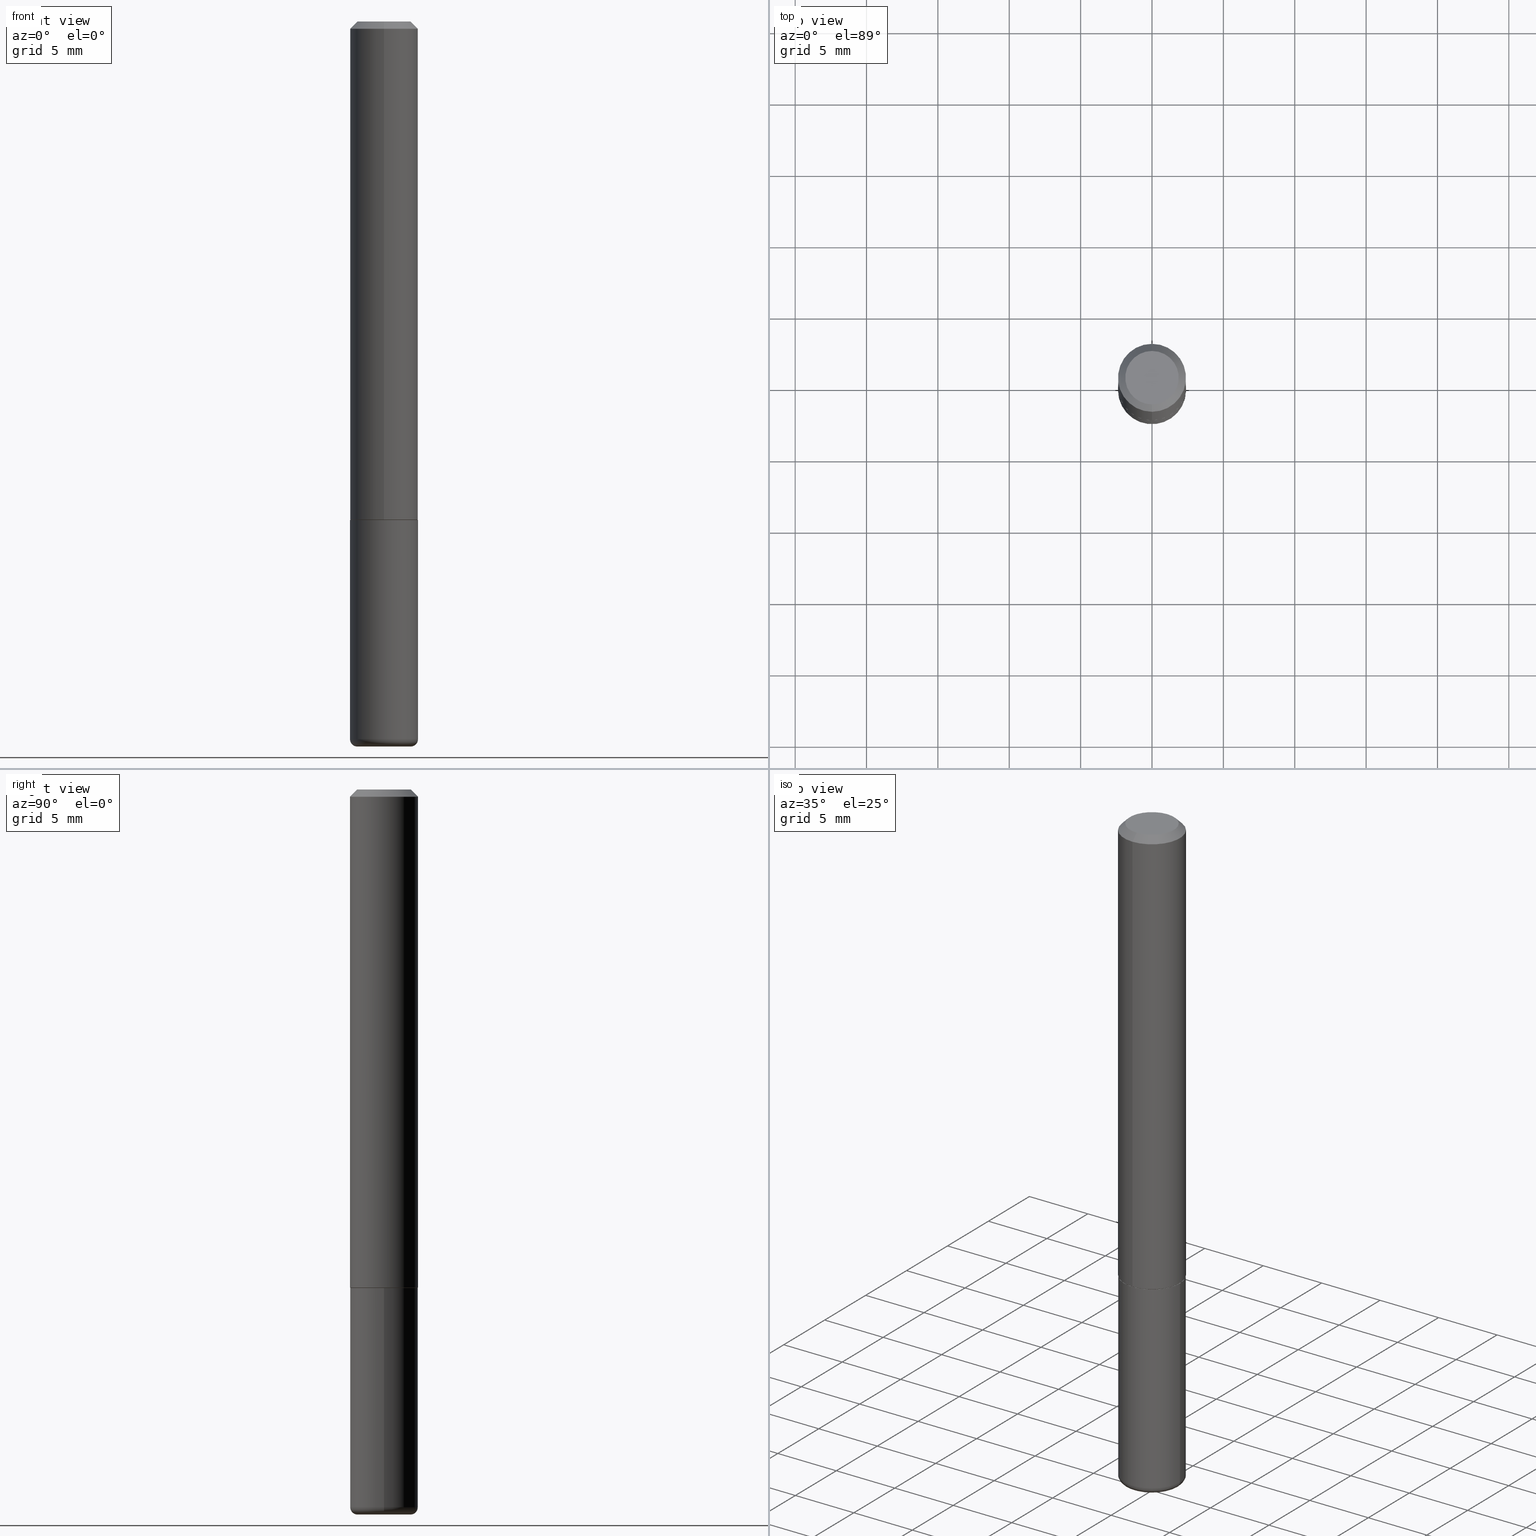
[diagram: canonical four-view strip — front | top / right | iso, engineering-drawing reading convention]
A machine part, canonical four-view strip (front | top / right | iso — engineering-drawing reading convention). The complete STEP part file that produces these views, byte-faithful:
ISO-10303-21;
HEADER;
FILE_DESCRIPTION (( 'STEP AP203' ),
    '1' );
FILE_NAME ('38211.STEP',
    '2024-03-02T18:24:56',
    ( '' ),
    ( '' ),
    'SwSTEP 2.0',
    'SolidWorks 2023',
    '' );
FILE_SCHEMA (( 'CONFIG_CONTROL_DESIGN' ));
ENDSEC;

DATA;
#1 = CC_DESIGN_APPROVAL ( #50, ( #32 ) ) ;
#2 = PERSON_AND_ORGANIZATION ( #252, #129 ) ;
#3 = DATE_AND_TIME ( #166, #407 ) ;
#4 = DIRECTION ( 'NONE',  ( -6.982962677686265922E-15, -1.000000000000000000, 2.945388672414299892E-15 ) ) ;
#5 = ADVANCED_FACE ( 'NONE', ( #393 ), #267, .T. ) ;
#6 = COORDINATED_UNIVERSAL_TIME_OFFSET ( 5, 0, .BEHIND. ) ;
#7 = TOROIDAL_SURFACE ( 'NONE', #56, 0.07375000000000000999, 0.01999999999999990327 ) ;
#8 = CIRCLE ( 'NONE', #51, 0.09375000000000002776 ) ;
#9 = ORIENTED_EDGE ( 'NONE', *, *, #237, .F. ) ;
#10 = EDGE_CURVE ( 'NONE', #324, #135, #134, .T. ) ;
#11 = MECHANICAL_CONTEXT ( 'NONE', #33, 'mechanical' ) ;
#12 = ORIENTED_EDGE ( 'NONE', *, *, #15, .F. ) ;
#13 = AXIS2_PLACEMENT_3D ( 'NONE', #126, #130, #385 ) ;
#14 = DIRECTION ( 'NONE',  ( -2.445468806185136597E-29, 3.491481338843145583E-15, 1.000000000000000000 ) ) ;
#15 = EDGE_CURVE ( 'NONE', #75, #53, #38, .T. ) ;
#16 = FACE_OUTER_BOUND ( 'NONE', #22, .T. ) ;
#17 = APPROVAL_ROLE ( '' ) ;
#18 = CARTESIAN_POINT ( 'NONE',  ( -0.07375000000000000999, -6.352968323098775674E-15, -1.999999999999999778 ) ) ;
#19 = ADVANCED_FACE ( 'NONE', ( #254 ), #116, .F. ) ;
#20 = CARTESIAN_POINT ( 'NONE',  ( -6.546527510330881944E-16, -0.09375000000000011102, 3.272963696799707431E-16 ) ) ;
#21 = DIRECTION ( 'NONE',  ( 2.445692304464510391E-29, -3.491161276586350254E-15, -1.000000000000000000 ) ) ;
#22 = EDGE_LOOP ( 'NONE', ( #156, #263, #95, #300 ) ) ;
#23 = CLOSED_SHELL ( 'NONE', ( #368, #34, #278, #326, #104, #247 ) ) ;
#24 = DIRECTION ( 'NONE',  ( 2.438088387897960049E-29, -3.491481338843145188E-15, -1.000000000000000000 ) ) ;
#25 = CARTESIAN_POINT ( 'NONE',  ( -0.09375000000000001388, -5.190826131134282474E-15, -1.375000000000000000 ) ) ;
#26 = ADVANCED_FACE ( 'NONE', ( #336 ), #83, .T. ) ;
#27 = DIRECTION ( 'NONE',  ( -2.445692304464510391E-29, 3.491161276586350254E-15, 1.000000000000000000 ) ) ;
#28 = EDGE_LOOP ( 'NONE', ( #12, #59 ) ) ;
#29 = VECTOR ( 'NONE', #310, 39.37007874015748143 ) ;
#30 = AXIS2_PLACEMENT_3D ( 'NONE', #54, #312, #291 ) ;
#31 = ORIENTED_EDGE ( 'NONE', *, *, #209, .T. ) ;
#32 = SECURITY_CLASSIFICATION ( '', '', #363 ) ;
#33 = APPLICATION_CONTEXT ( 'configuration controlled 3d designs of mechanical parts and assemblies' ) ;
#34 = ADVANCED_FACE ( 'NONE', ( #16 ), #7, .T. ) ;
#35 = ORIENTED_EDGE ( 'NONE', *, *, #10, .T. ) ;
#36 = COORDINATED_UNIVERSAL_TIME_OFFSET ( 5, 0, .BEHIND. ) ;
#37 = EDGE_CURVE ( 'NONE', #210, #153, #338, .T. ) ;
#38 = CIRCLE ( 'NONE', #320, 0.07375000000000000999 ) ;
#39 = ORIENTED_EDGE ( 'NONE', *, *, #398, .T. ) ;
#40 = CIRCLE ( 'NONE', #321, 0.07375000000000013489 ) ;
#41 = ADVANCED_FACE ( 'NONE', ( #332 ), #146, .T. ) ;
#42 = DIRECTION ( 'NONE',  ( -2.445692304464510391E-29, 3.491161276586350254E-15, 1.000000000000000000 ) ) ;
#43 = AXIS2_PLACEMENT_3D ( 'NONE', #378, #223, #414 ) ;
#44 = PERSON_AND_ORGANIZATION ( #252, #129 ) ;
#45 = CC_DESIGN_DATE_AND_TIME_ASSIGNMENT ( #353, #82, ( #182 ) ) ;
#46 = CARTESIAN_POINT ( 'NONE',  ( 4.842028236246570103E-29, -6.913133050909427867E-15, -1.979999999999999982 ) ) ;
#47 = CARTESIAN_POINT ( 'NONE',  ( 0.07375000000000000999, -7.497956175165652073E-15, -1.999999999999999778 ) ) ;
#48 = APPLICATION_CONTEXT ( 'configuration controlled 3d designs of mechanical parts and assemblies' ) ;
#49 = DIRECTION ( 'NONE',  ( -6.982962677686266711E-15, -1.000000000000000000, 2.913971193241874850E-15 ) ) ;
#50 = APPROVAL ( #331, 'UNSPECIFIED' ) ;
#51 = AXIS2_PLACEMENT_3D ( 'NONE', #276, #244, #362 ) ;
#52 = DIRECTION ( 'NONE',  ( 1.000000000000000000, -6.982962677686272233E-15, 0.000000000000000000 ) ) ;
#53 = VERTEX_POINT ( 'NONE', #18 ) ;
#54 = CARTESIAN_POINT ( 'NONE',  ( 4.891384608929025126E-31, -6.982322553172705093E-17, -0.02000000000000001776 ) ) ;
#55 = EDGE_LOOP ( 'NONE', ( #132, #185 ) ) ;
#56 = AXIS2_PLACEMENT_3D ( 'NONE', #46, #220, #277 ) ;
#57 = AXIS2_PLACEMENT_3D ( 'NONE', #305, #330, #304 ) ;
#58 = CARTESIAN_POINT ( 'NONE',  ( 3.362519608504562260E-29, -4.800786840909324930E-15, -1.375000000000000000 ) ) ;
#59 = ORIENTED_EDGE ( 'NONE', *, *, #78, .F. ) ;
#60 = CARTESIAN_POINT ( 'NONE',  ( 4.891384608929025126E-31, -6.982322553172705093E-17, -0.02000000000000001776 ) ) ;
#61 = EDGE_LOOP ( 'NONE', ( #292, #110, #314, #65 ) ) ;
#62 = CARTESIAN_POINT ( 'NONE',  ( 0.07375000000000000999, -7.428126548388790352E-15, -1.979999999999999982 ) ) ;
#63 = ORIENTED_EDGE ( 'NONE', *, *, #158, .T. ) ;
#64 = CIRCLE ( 'NONE', #195, 0.09375000000000001388 ) ;
#65 = ORIENTED_EDGE ( 'NONE', *, *, #158, .F. ) ;
#66 = LINE ( 'NONE', #271, #117 ) ;
#67 = CARTESIAN_POINT ( 'NONE',  ( 3.362826918638701367E-29, -4.800346755306231649E-15, -1.375000000000000000 ) ) ;
#68 = DIRECTION ( 'NONE',  ( -2.445692304464510391E-29, 3.491161276586350254E-15, 1.000000000000000000 ) ) ;
#69 = ORIENTED_EDGE ( 'NONE', *, *, #164, .T. ) ;
#70 =( NAMED_UNIT ( * ) PLANE_ANGLE_UNIT ( ) SI_UNIT ( $, .RADIAN. ) );
#71 = ORIENTED_EDGE ( 'NONE', *, *, #379, .T. ) ;
#72 = CIRCLE ( 'NONE', #283, 0.01999999999999989633 ) ;
#73 = MANIFOLD_SOLID_BREP ( 'Body-Move/Copy2[2]', #172 ) ;
#74 =( LENGTH_UNIT ( ) NAMED_UNIT ( * ) SI_UNIT ( $, .METRE. ) );
#75 = VERTEX_POINT ( 'NONE', #47 ) ;
#76 = PERSON_AND_ORGANIZATION ( #252, #129 ) ;
#77 = CARTESIAN_POINT ( 'NONE',  ( 4.890937612370272633E-29, -6.982962677686290376E-15, -1.999999999999999778 ) ) ;
#78 = EDGE_CURVE ( 'NONE', #53, #75, #383, .T. ) ;
#79 = COORDINATED_UNIVERSAL_TIME_OFFSET ( 5, 0, .BEHIND. ) ;
#80 = FACE_OUTER_BOUND ( 'NONE', #238, .T. ) ;
#81 = AXIS2_PLACEMENT_3D ( 'NONE', #279, #371, #49 ) ;
#82 = DATE_TIME_ROLE ( 'creation_date' ) ;
#83 = CYLINDRICAL_SURFACE ( 'NONE', #249, 0.09375000000000011102 ) ;
#84 = CARTESIAN_POINT ( 'NONE',  ( 3.362826918638701367E-29, -4.800346755306231649E-15, -1.375000000000000000 ) ) ;
#85 = ADVANCED_FACE ( 'NONE', ( #80 ), #409, .T. ) ;
#86 = CARTESIAN_POINT ( 'NONE',  ( 6.661338147750946145E-16, 0.09375000000000011102, -3.272963696799707431E-16 ) ) ;
#87 = AXIS2_PLACEMENT_3D ( 'NONE', #67, #165, #4 ) ;
#88 = CIRCLE ( 'NONE', #154, 0.07375000000000013489 ) ;
#89 = PLANE ( 'NONE',  #180 ) ;
#90 = PRODUCT_DEFINITION_SHAPE ( 'NONE', 'NONE',  #182 ) ;
#91 = VERTEX_POINT ( 'NONE', #178 ) ;
#92 = LINE ( 'NONE', #127, #274 ) ;
#93 = CC_DESIGN_PERSON_AND_ORGANIZATION_ASSIGNMENT ( #163, #295, ( #410 ) ) ;
#94 = DIRECTION ( 'NONE',  ( -2.445468806185136877E-29, 3.491481338843145188E-15, 1.000000000000000000 ) ) ;
#95 = ORIENTED_EDGE ( 'NONE', *, *, #412, .F. ) ;
#96 = CIRCLE ( 'NONE', #390, 0.09375000000000002776 ) ;
#97 = CARTESIAN_POINT ( 'NONE',  ( -6.476697883553675688E-16, -0.09275000000000480083, -1.374999999999999778 ) ) ;
#98 = DIRECTION ( 'NONE',  ( -1.000000000000000000, 6.982962677686265922E-15, -4.876176775795935793E-29 ) ) ;
#99 = CARTESIAN_POINT ( 'NONE',  ( 1.879681562415174393E-45, -2.683195866887273789E-31, -7.685682941324603213E-17 ) ) ;
#100 = ORIENTED_EDGE ( 'NONE', *, *, #122, .T. ) ;
#101 = DIRECTION ( 'NONE',  ( 1.000000000000000000, -6.982962677686265922E-15, 4.876176775795935793E-29 ) ) ;
#102 = AXIS2_PLACEMENT_3D ( 'NONE', #380, #191, #317 ) ;
#103 = VERTEX_POINT ( 'NONE', #369 ) ;
#104 = ADVANCED_FACE ( 'NONE', ( #149 ), #315, .T. ) ;
#105 = CARTESIAN_POINT ( 'NONE',  ( 0.000000000000000000, 0.000000000000000000, 0.000000000000000000 ) ) ;
#106 = DIRECTION ( 'NONE',  ( 1.000000000000000000, -6.982962677686270655E-15, 0.000000000000000000 ) ) ;
#107 = EDGE_CURVE ( 'NONE', #340, #296, #120, .T. ) ;
#108 = EDGE_LOOP ( 'NONE', ( #298, #69, #169, #358 ) ) ;
#109 = CYLINDRICAL_SURFACE ( 'NONE', #227, 0.09375000000000002776 ) ;
#110 = ORIENTED_EDGE ( 'NONE', *, *, #334, .T. ) ;
#111 = CIRCLE ( 'NONE', #417, 0.09274999999999999911 ) ;
#112 = DIRECTION ( 'NONE',  ( -2.445692304464510391E-29, 3.491161276586350254E-15, 1.000000000000000000 ) ) ;
#113 = COORDINATED_UNIVERSAL_TIME_OFFSET ( 5, 0, .BEHIND. ) ;
#114 = DIRECTION ( 'NONE',  ( -6.982962677686265922E-15, -1.000000000000000000, 3.491161276586350648E-15 ) ) ;
#115 = APPROVAL_DATE_TIME ( #118, #50 ) ;
#116 = PLANE ( 'NONE',  #365 ) ;
#117 = VECTOR ( 'NONE', #350, 39.37007874015748143 ) ;
#118 = DATE_AND_TIME ( #327, #196 ) ;
#119 = EDGE_CURVE ( 'NONE', #153, #103, #403, .T. ) ;
#120 = LINE ( 'NONE', #143, #186 ) ;
#121 = CARTESIAN_POINT ( 'NONE',  ( -5.745667073133659498E-16, -0.07375000000000013489, 1.806163147349977463E-16 ) ) ;
#122 = EDGE_CURVE ( 'NONE', #153, #324, #374, .T. ) ;
#123 = CONICAL_SURFACE ( 'NONE', #400, 0.09375000000000002776, 0.7853981633974471688 ) ;
#124 = CARTESIAN_POINT ( 'NONE',  ( 1.006419661735187879E-28, 4.254386610642577805E-16, -2.000000000000000000 ) ) ;
#125 = CC_DESIGN_PERSON_AND_ORGANIZATION_ASSIGNMENT ( #388, #199, ( #182 ) ) ;
#126 = CARTESIAN_POINT ( 'NONE',  ( 5.149934974793630771E-16, 0.07375000000000013489, -2.959015588548668315E-16 ) ) ;
#127 = CARTESIAN_POINT ( 'NONE',  ( 6.546527510330880958E-16, 0.09374999999999995837, -0.02000000000000034736 ) ) ;
#128 = AXIS2_PLACEMENT_3D ( 'NONE', #250, #307, #114 ) ;
#129 = ORGANIZATION ( 'UNSPECIFIED', 'UNSPECIFIED', '' ) ;
#130 = DIRECTION ( 'NONE',  ( 2.445692304464510111E-29, -3.491161276586350254E-15, -1.000000000000000000 ) ) ;
#131 = EDGE_CURVE ( 'NONE', #135, #103, #207, .T. ) ;
#132 = ORIENTED_EDGE ( 'NONE', *, *, #303, .F. ) ;
#133 =( CONVERSION_BASED_UNIT ( 'INCH', #392 ) LENGTH_UNIT ( ) NAMED_UNIT ( #239 ) );
#134 = LINE ( 'NONE', #86, #29 ) ;
#135 = VERTEX_POINT ( 'NONE', #246 ) ;
#136 = CARTESIAN_POINT ( 'NONE',  ( 6.590283874175264427E-16, 0.09274999999999521128, -1.375000000000000222 ) ) ;
#137 = ORIENTED_EDGE ( 'NONE', *, *, #258, .F. ) ;
#138 = CARTESIAN_POINT ( 'NONE',  ( 0.000000000000000000, 0.000000000000000000, 0.000000000000000000 ) ) ;
#139 = APPROVAL_ROLE ( '' ) ;
#140 = ORIENTED_EDGE ( 'NONE', *, *, #107, .F. ) ;
#141 = AXIS2_PLACEMENT_3D ( 'NONE', #413, #256, #348 ) ;
#142 = CARTESIAN_POINT ( 'NONE',  ( 0.000000000000000000, 0.000000000000000000, 0.000000000000000000 ) ) ;
#143 = CARTESIAN_POINT ( 'NONE',  ( -0.09375000000000002776, 6.661338147750941215E-16, -4.611501647113975397E-30 ) ) ;
#144 = CC_DESIGN_DATE_AND_TIME_ASSIGNMENT ( #280, #329, ( #32 ) ) ;
#145 = PERSON_AND_ORGANIZATION ( #252, #129 ) ;
#146 = CONICAL_SURFACE ( 'NONE', #205, 0.09274999999999999911, 0.7853981633975080090 ) ;
#147 = CIRCLE ( 'NONE', #337, 0.09375000000000001388 ) ;
#148 = CALENDAR_DATE ( 2024, 2, 3 ) ;
#149 = FACE_OUTER_BOUND ( 'NONE', #170, .T. ) ;
#150 = CARTESIAN_POINT ( 'NONE',  ( 0.000000000000000000, 0.000000000000000000, 0.000000000000000000 ) ) ;
#151 = FACE_OUTER_BOUND ( 'NONE', #167, .T. ) ;
#152 = EDGE_CURVE ( 'NONE', #340, #270, #8, .T. ) ;
#153 = VERTEX_POINT ( 'NONE', #212 ) ;
#154 = AXIS2_PLACEMENT_3D ( 'NONE', #236, #357, #323 ) ;
#155 = FACE_OUTER_BOUND ( 'NONE', #61, .T. ) ;
#156 = ORIENTED_EDGE ( 'NONE', *, *, #15, .T. ) ;
#157 = FACE_OUTER_BOUND ( 'NONE', #28, .T. ) ;
#158 = EDGE_CURVE ( 'NONE', #192, #135, #92, .T. ) ;
#159 = DIRECTION ( 'NONE',  ( -6.982962677686265922E-15, -1.000000000000000000, 2.945388672414299892E-15 ) ) ;
#160 = ORIENTED_EDGE ( 'NONE', *, *, #265, .F. ) ;
#161 = AXIS2_PLACEMENT_3D ( 'NONE', #309, #112, #404 ) ;
#162 = APPLICATION_PROTOCOL_DEFINITION ( 'international standard', 'config_control_design', 1994, #48 ) ;
#163 = PERSON_AND_ORGANIZATION ( #252, #129 ) ;
#164 = EDGE_CURVE ( 'NONE', #381, #210, #344, .T. ) ;
#165 = DIRECTION ( 'NONE',  ( -2.445692304464510391E-29, 3.491161276586350254E-15, 1.000000000000000000 ) ) ;
#166 = CALENDAR_DATE ( 2024, 2, 3 ) ;
#167 = EDGE_LOOP ( 'NONE', ( #235, #243, #63, #389 ) ) ;
#168 = ADVANCED_FACE ( 'NONE', ( #151 ), #123, .T. ) ;
#169 = ORIENTED_EDGE ( 'NONE', *, *, #37, .T. ) ;
#170 = EDGE_LOOP ( 'NONE', ( #318, #171, #354, #273 ) ) ;
#171 = ORIENTED_EDGE ( 'NONE', *, *, #78, .T. ) ;
#172 = CLOSED_SHELL ( 'NONE', ( #41, #26, #294, #168, #85, #5, #19, #306 ) ) ;
#173 = DIRECTION ( 'NONE',  ( -6.982962677686265922E-15, -1.000000000000000000, 3.491161276586350254E-15 ) ) ;
#174 = CIRCLE ( 'NONE', #352, 0.01999999999999989633 ) ;
#175 = PERSON_AND_ORGANIZATION_ROLE ( 'classification_officer' ) ;
#176 = DIRECTION ( 'NONE',  ( 1.000000000000000000, -6.982962677686269077E-15, 0.000000000000000000 ) ) ;
#177 = EDGE_CURVE ( 'NONE', #53, #340, #174, .T. ) ;
#178 = CARTESIAN_POINT ( 'NONE',  ( 0.09375000000000001388, -5.455439591942412434E-15, -1.375000000000000000 ) ) ;
#179 = DIRECTION ( 'NONE',  ( -2.445692304464510111E-29, 3.491161276586350254E-15, 1.000000000000000000 ) ) ;
#180 = AXIS2_PLACEMENT_3D ( 'NONE', #124, #231, #225 ) ;
#181 = DIRECTION ( 'NONE',  ( 1.000000000000000000, -6.982962677686269077E-15, 0.000000000000000000 ) ) ;
#182 = PRODUCT_DEFINITION ( 'UNKNOWN', '', #302, #397 ) ;
#183 = CARTESIAN_POINT ( 'NONE',  ( 3.362519608504562260E-29, -4.800786840909324930E-15, -1.375000000000000000 ) ) ;
#184 = CARTESIAN_POINT ( 'NONE',  ( 5.848231242562254878E-16, 0.07375000000000013489, -3.343299735614898105E-16 ) ) ;
#185 = ORIENTED_EDGE ( 'NONE', *, *, #164, .F. ) ;
#186 = VECTOR ( 'NONE', #282, 39.37007874015748143 ) ;
#187 = LOCAL_TIME ( 13, 24, 56.00000000000000000, #36 ) ;
#188 = DIRECTION ( 'NONE',  ( -1.000000000000000000, 7.105427357601011325E-15, 0.000000000000000000 ) ) ;
#189 = ORIENTED_EDGE ( 'NONE', *, *, #119, .T. ) ;
#190 = APPROVAL ( #405, 'UNSPECIFIED' ) ;
#191 = DIRECTION ( 'NONE',  ( 2.445692304464510391E-29, -3.491161276586350254E-15, -1.000000000000000000 ) ) ;
#192 = VERTEX_POINT ( 'NONE', #184 ) ;
#193 = DIRECTION ( 'NONE',  ( -2.445468806185136597E-29, 3.491481338843145583E-15, 1.000000000000000000 ) ) ;
#194 = ORIENTED_EDGE ( 'NONE', *, *, #377, .T. ) ;
#195 = AXIS2_PLACEMENT_3D ( 'NONE', #58, #415, #316 ) ;
#196 = LOCAL_TIME ( 13, 24, 56.00000000000000000, #217 ) ;
#197 = APPROVAL_ROLE ( '' ) ;
#198 = EDGE_LOOP ( 'NONE', ( #100, #35, #137, #230 ) ) ;
#199 = PERSON_AND_ORGANIZATION_ROLE ( 'creator' ) ;
#200 = APPROVAL ( #233, 'UNSPECIFIED' ) ;
#201 = ORIENTED_EDGE ( 'NONE', *, *, #131, .F. ) ;
#202 = DIRECTION ( 'NONE',  ( -2.445468806185136597E-29, 3.491481338843145583E-15, 1.000000000000000000 ) ) ;
#203 = ORIENTED_EDGE ( 'NONE', *, *, #412, .T. ) ;
#204 = MANIFOLD_SOLID_BREP ( 'Body-Move/Copy2[1]', #23 ) ;
#205 = AXIS2_PLACEMENT_3D ( 'NONE', #84, #42, #401 ) ;
#206 = FACE_OUTER_BOUND ( 'NONE', #224, .T. ) ;
#207 = CIRCLE ( 'NONE', #161, 0.09375000000000002776 ) ;
#208 = CC_DESIGN_APPROVAL ( #200, ( #182 ) ) ;
#209 = EDGE_CURVE ( 'NONE', #324, #153, #221, .T. ) ;
#210 = VERTEX_POINT ( 'NONE', #97 ) ;
#211 = DIRECTION ( 'NONE',  ( -4.937700262164843076E-15, -0.7071067811865873187, 0.7071067811865077157 ) ) ;
#212 = CARTESIAN_POINT ( 'NONE',  ( -6.546527510330552594E-16, -0.09375000000000499600, -1.373999999999999666 ) ) ;
#213 = CC_DESIGN_SECURITY_CLASSIFICATION ( #32, ( #302 ) ) ;
#214 = PERSON_AND_ORGANIZATION ( #252, #129 ) ;
#215 = EDGE_CURVE ( 'NONE', #75, #270, #72, .T. ) ;
#216 = DIRECTION ( 'NONE',  ( -2.445692304464510391E-29, 3.491161276586350254E-15, 1.000000000000000000 ) ) ;
#217 = COORDINATED_UNIVERSAL_TIME_OFFSET ( 5, 0, .BEHIND. ) ;
#218 = DIRECTION ( 'NONE',  ( -2.445692304464510391E-29, 3.491161276586350254E-15, 1.000000000000000000 ) ) ;
#219 = UNCERTAINTY_MEASURE_WITH_UNIT (LENGTH_MEASURE( 1.000000000000000082E-05 ), #133, 'distance_accuracy_value', 'NONE');
#220 = DIRECTION ( 'NONE',  ( -2.445468806185136597E-29, 3.491481338843145583E-15, 1.000000000000000000 ) ) ;
#221 = CIRCLE ( 'NONE', #43, 0.09375000000000019429 ) ;
#222 = CARTESIAN_POINT ( 'NONE',  ( 3.362826918638701367E-29, -4.800346755306231649E-15, -1.375000000000000000 ) ) ;
#223 = DIRECTION ( 'NONE',  ( -2.445692304464510391E-29, 3.491161276586350254E-15, 1.000000000000000000 ) ) ;
#224 = EDGE_LOOP ( 'NONE', ( #203, #418, #361, #9 ) ) ;
#225 = DIRECTION ( 'NONE',  ( -1.000000000000000000, 6.982962677686265922E-15, -4.876176775795935793E-29 ) ) ;
#226 = VECTOR ( 'NONE', #211, 39.37007874015748143 ) ;
#227 = AXIS2_PLACEMENT_3D ( 'NONE', #105, #355, #101 ) ;
#228 = APPROVAL_PERSON_ORGANIZATION ( #145, #50, #139 ) ;
#229 = DIRECTION ( 'NONE',  ( 1.000000000000000000, -6.982962677686261189E-15, 0.000000000000000000 ) ) ;
#230 = ORIENTED_EDGE ( 'NONE', *, *, #119, .F. ) ;
#231 = DIRECTION ( 'NONE',  ( 2.438088387897960049E-29, -3.491481338843145188E-15, -1.000000000000000000 ) ) ;
#232 = ORIENTED_EDGE ( 'NONE', *, *, #37, .F. ) ;
#233 = APPROVAL_STATUS ( 'not_yet_approved' ) ;
#234 = CALENDAR_DATE ( 2024, 2, 3 ) ;
#235 = ORIENTED_EDGE ( 'NONE', *, *, #334, .F. ) ;
#236 = CARTESIAN_POINT ( 'NONE',  ( 1.879681562415174393E-45, -2.683195866887273789E-31, -7.685682941324603213E-17 ) ) ;
#237 = EDGE_CURVE ( 'NONE', #270, #91, #257, .T. ) ;
#238 = EDGE_LOOP ( 'NONE', ( #399, #31, #189, #201 ) ) ;
#239 = DIMENSIONAL_EXPONENTS ( 1.000000000000000000, 0.000000000000000000, 0.000000000000000000, 0.000000000000000000, 0.000000000000000000, 0.000000000000000000, 0.000000000000000000 ) ;
#240 = ORIENTED_EDGE ( 'NONE', *, *, #265, .T. ) ;
#241 = CARTESIAN_POINT ( 'NONE',  ( 6.625811010963275384E-16, 0.09274999999999521128, -1.375000000000000222 ) ) ;
#242 = CC_DESIGN_APPROVAL ( #190, ( #302 ) ) ;
#243 = ORIENTED_EDGE ( 'NONE', *, *, #379, .F. ) ;
#244 = DIRECTION ( 'NONE',  ( -2.445468806185136597E-29, 3.491481338843145583E-15, 1.000000000000000000 ) ) ;
#245 = PERSON_AND_ORGANIZATION ( #252, #129 ) ;
#246 = CARTESIAN_POINT ( 'NONE',  ( 6.546527510330880958E-16, 0.09374999999999995837, -0.02000000000000034736 ) ) ;
#247 = ADVANCED_FACE ( 'NONE', ( #157 ), #89, .T. ) ;
#248 = APPROVAL_DATE_TIME ( #366, #190 ) ;
#249 = AXIS2_PLACEMENT_3D ( 'NONE', #142, #216, #373 ) ;
#250 = CARTESIAN_POINT ( 'NONE',  ( 0.000000000000000000, 0.000000000000000000, 0.000000000000000000 ) ) ;
#251 = AXIS2_PLACEMENT_3D ( 'NONE', #150, #286, #411 ) ;
#252 = PERSON ( 'UNSPECIFIED', 'UNSPECIFIED', 'UNSPECIFIED', ('UNSPECIFIED'), ('UNSPECIFIED'), ('UNSPECIFIED') ) ;
#253 = APPROVAL_PERSON_ORGANIZATION ( #44, #190, #17 ) ;
#254 = FACE_OUTER_BOUND ( 'NONE', #55, .T. ) ;
#255 = EDGE_CURVE ( 'NONE', #91, #296, #64, .T. ) ;
#256 = DIRECTION ( 'NONE',  ( -2.445692304464510391E-29, 3.491161276586350254E-15, 1.000000000000000000 ) ) ;
#257 = LINE ( 'NONE', #290, #367 ) ;
#258 = EDGE_CURVE ( 'NONE', #103, #135, #308, .T. ) ;
#259 = CYLINDRICAL_SURFACE ( 'NONE', #251, 0.09375000000000002776 ) ;
#260 = CARTESIAN_POINT ( 'NONE',  ( 0.09374999999999995837, -7.567785801942515371E-15, -1.979999999999999982 ) ) ;
#261 =( GEOMETRIC_REPRESENTATION_CONTEXT ( 3 ) GLOBAL_UNCERTAINTY_ASSIGNED_CONTEXT ( ( #219 ) ) GLOBAL_UNIT_ASSIGNED_CONTEXT ( ( #133, #70, #299 ) ) REPRESENTATION_CONTEXT ( 'NONE', 'WORKASPACE' ) );
#262 = FACE_OUTER_BOUND ( 'NONE', #356, .T. ) ;
#263 = ORIENTED_EDGE ( 'NONE', *, *, #177, .T. ) ;
#264 = ORIENTED_EDGE ( 'NONE', *, *, #255, .T. ) ;
#265 = EDGE_CURVE ( 'NONE', #296, #91, #147, .T. ) ;
#266 = APPROVAL_DATE_TIME ( #3, #200 ) ;
#267 = CONICAL_SURFACE ( 'NONE', #87, 0.09274999999999999911, 0.7853981633975080090 ) ;
#268 = AXIS2_PLACEMENT_3D ( 'NONE', #77, #285, #176 ) ;
#269 = CARTESIAN_POINT ( 'NONE',  ( -0.09374999999999995837, -6.246999236134334732E-15, -1.979999999999999982 ) ) ;
#270 = VERTEX_POINT ( 'NONE', #260 ) ;
#271 = CARTESIAN_POINT ( 'NONE',  ( -6.431716872910806895E-16, -0.09375000000000009714, -0.01999999999999968817 ) ) ;
#272 = DIRECTION ( 'NONE',  ( 0.000000000000000000, 0.000000000000000000, 1.000000000000000000 ) ) ;
#273 = ORIENTED_EDGE ( 'NONE', *, *, #152, .F. ) ;
#274 = VECTOR ( 'NONE', #375, 39.37007874015748143 ) ;
#275 = LOCAL_TIME ( 13, 24, 56.00000000000000000, #113 ) ;
#276 = CARTESIAN_POINT ( 'NONE',  ( 4.842028236246570103E-29, -6.913133050909427867E-15, -1.979999999999999982 ) ) ;
#277 = DIRECTION ( 'NONE',  ( 1.000000000000000000, -6.982962677686269866E-15, 4.883557194083114022E-29 ) ) ;
#278 = ADVANCED_FACE ( 'NONE', ( #262 ), #416, .F. ) ;
#279 = CARTESIAN_POINT ( 'NONE',  ( 3.360381226334237203E-29, -4.796855594029644698E-15, -1.373999999999999888 ) ) ;
#280 = DATE_AND_TIME ( #148, #376 ) ;
#281 = VECTOR ( 'NONE', #297, 39.37007874015748143 ) ;
#282 = DIRECTION ( 'NONE',  ( -2.445468806185136877E-29, 3.491481338843145188E-15, 1.000000000000000000 ) ) ;
#283 = AXIS2_PLACEMENT_3D ( 'NONE', #62, #382, #52 ) ;
#284 = APPROVAL_PERSON_ORGANIZATION ( #2, #200, #197 ) ;
#285 = DIRECTION ( 'NONE',  ( -2.445468806185136597E-29, 3.491481338843145583E-15, 1.000000000000000000 ) ) ;
#286 = DIRECTION ( 'NONE',  ( -2.445468806185136597E-29, 3.491481338843145583E-15, 1.000000000000000000 ) ) ;
#287 = CARTESIAN_POINT ( 'NONE',  ( -0.07375000000000000999, -6.389107783286354106E-15, -1.979999999999999982 ) ) ;
#288 = CONICAL_SURFACE ( 'NONE', #102, 0.09375000000000002776, 0.7853981633974471688 ) ;
#289 = FACE_OUTER_BOUND ( 'NONE', #349, .T. ) ;
#290 = CARTESIAN_POINT ( 'NONE',  ( 0.09375000000000002776, -6.546527510330876027E-16, 4.571415727308691207E-30 ) ) ;
#291 = DIRECTION ( 'NONE',  ( -6.982962677686265922E-15, -1.000000000000000000, 3.505871591869136910E-15 ) ) ;
#292 = ORIENTED_EDGE ( 'NONE', *, *, #377, .F. ) ;
#293 = AXIS2_PLACEMENT_3D ( 'NONE', #138, #272, #396 ) ;
#294 = ADVANCED_FACE ( 'NONE', ( #155 ), #288, .T. ) ;
#295 = PERSON_AND_ORGANIZATION_ROLE ( 'design_owner' ) ;
#296 = VERTEX_POINT ( 'NONE', #25 ) ;
#297 = DIRECTION ( 'NONE',  ( 5.024295867788362157E-15, 0.7071067811865922037, 0.7071067811865028307 ) ) ;
#298 = ORIENTED_EDGE ( 'NONE', *, *, #398, .F. ) ;
#299 =( NAMED_UNIT ( * ) SI_UNIT ( $, .STERADIAN. ) SOLID_ANGLE_UNIT ( ) );
#300 = ORIENTED_EDGE ( 'NONE', *, *, #215, .F. ) ;
#301 = CARTESIAN_POINT ( 'NONE',  ( 4.842028236246570103E-29, -6.913133050909427867E-15, -1.979999999999999982 ) ) ;
#302 = PRODUCT_DEFINITION_FORMATION_WITH_SPECIFIED_SOURCE ( 'ANY', '', #410, .NOT_KNOWN. ) ;
#303 = EDGE_CURVE ( 'NONE', #210, #381, #111, .T. ) ;
#304 = DIRECTION ( 'NONE',  ( 1.000000000000000000, -6.982962677686269866E-15, 4.883557194083114022E-29 ) ) ;
#305 = CARTESIAN_POINT ( 'NONE',  ( 4.842028236246570103E-29, -6.913133050909427867E-15, -1.979999999999999982 ) ) ;
#306 = ADVANCED_FACE ( 'NONE', ( #289 ), #339, .F. ) ;
#307 = DIRECTION ( 'NONE',  ( -2.445692304464510391E-29, 3.491161276586350254E-15, 1.000000000000000000 ) ) ;
#308 = CIRCLE ( 'NONE', #30, 0.09375000000000002776 ) ;
#309 = CARTESIAN_POINT ( 'NONE',  ( 4.891384608929025126E-31, -6.982322553172705093E-17, -0.02000000000000001776 ) ) ;
#310 = DIRECTION ( 'NONE',  ( -2.445692304464510391E-29, 3.491161276586350254E-15, 1.000000000000000000 ) ) ;
#311 = CARTESIAN_POINT ( 'NONE',  ( 6.661338147751117722E-16, 0.09374999999999537870, -1.374000000000000110 ) ) ;
#312 = DIRECTION ( 'NONE',  ( -2.445692304464510391E-29, 3.491161276586350254E-15, 1.000000000000000000 ) ) ;
#313 = CC_DESIGN_PERSON_AND_ORGANIZATION_ASSIGNMENT ( #76, #175, ( #32 ) ) ;
#314 = ORIENTED_EDGE ( 'NONE', *, *, #258, .T. ) ;
#315 = TOROIDAL_SURFACE ( 'NONE', #57, 0.07375000000000000999, 0.01999999999999990327 ) ;
#316 = DIRECTION ( 'NONE',  ( 1.000000000000000000, -6.982962677686261189E-15, 0.000000000000000000 ) ) ;
#317 = DIRECTION ( 'NONE',  ( 6.982962677686265922E-15, 1.000000000000000000, -3.505871591869136910E-15 ) ) ;
#318 = ORIENTED_EDGE ( 'NONE', *, *, #177, .F. ) ;
#319 = FACE_OUTER_BOUND ( 'NONE', #351, .T. ) ;
#320 = AXIS2_PLACEMENT_3D ( 'NONE', #408, #14, #181 ) ;
#321 = AXIS2_PLACEMENT_3D ( 'NONE', #99, #68, #360 ) ;
#322 = ADVANCED_BREP_SHAPE_REPRESENTATION ( '38211', ( #204, #73, #293 ), #261 ) ;
#323 = DIRECTION ( 'NONE',  ( -6.982962677686265922E-15, -1.000000000000000000, 3.491161276586350254E-15 ) ) ;
#324 = VERTEX_POINT ( 'NONE', #311 ) ;
#325 = ORIENTED_EDGE ( 'NONE', *, *, #122, .F. ) ;
#326 = ADVANCED_FACE ( 'NONE', ( #319 ), #259, .T. ) ;
#327 = CALENDAR_DATE ( 2024, 2, 3 ) ;
#328 = VERTEX_POINT ( 'NONE', #121 ) ;
#329 = DATE_TIME_ROLE ( 'classification_date' ) ;
#330 = DIRECTION ( 'NONE',  ( -2.445468806185136597E-29, 3.491481338843145583E-15, 1.000000000000000000 ) ) ;
#331 = APPROVAL_STATUS ( 'not_yet_approved' ) ;
#332 = FACE_OUTER_BOUND ( 'NONE', #395, .T. ) ;
#333 = CARTESIAN_POINT ( 'NONE',  ( -6.476697883553675688E-16, -0.09275000000000480083, -1.374999999999999778 ) ) ;
#334 = EDGE_CURVE ( 'NONE', #328, #103, #66, .T. ) ;
#335 = CALENDAR_DATE ( 2024, 2, 3 ) ;
#336 = FACE_OUTER_BOUND ( 'NONE', #198, .T. ) ;
#337 = AXIS2_PLACEMENT_3D ( 'NONE', #183, #193, #229 ) ;
#338 = LINE ( 'NONE', #333, #226 ) ;
#339 = PLANE ( 'NONE',  #13 ) ;
#340 = VERTEX_POINT ( 'NONE', #269 ) ;
#341 = CC_DESIGN_PERSON_AND_ORGANIZATION_ASSIGNMENT ( #214, #372, ( #302 ) ) ;
#342 = DIRECTION ( 'NONE',  ( 6.982962677686265922E-15, 1.000000000000000000, -3.505871591869136910E-15 ) ) ;
#343 = DIRECTION ( 'NONE',  ( 7.105427357601001859E-15, 1.000000000000000000, -3.491481338843145583E-15 ) ) ;
#344 = CIRCLE ( 'NONE', #141, 0.09274999999999999911 ) ;
#345 = CARTESIAN_POINT ( 'NONE',  ( 3.362519608504562260E-29, -4.800786840909324930E-15, -1.375000000000000000 ) ) ;
#346 = ORIENTED_EDGE ( 'NONE', *, *, #237, .T. ) ;
#347 = PRODUCT_RELATED_PRODUCT_CATEGORY ( 'detail', '', ( #410 ) ) ;
#348 = DIRECTION ( 'NONE',  ( -6.982962677686265922E-15, -1.000000000000000000, 2.945388672414299892E-15 ) ) ;
#349 = EDGE_LOOP ( 'NONE', ( #71, #194 ) ) ;
#350 = DIRECTION ( 'NONE',  ( -4.851104656540957964E-15, -0.7071067811865491270, -0.7071067811865459074 ) ) ;
#351 = EDGE_LOOP ( 'NONE', ( #140, #384, #346, #160 ) ) ;
#352 = AXIS2_PLACEMENT_3D ( 'NONE', #287, #343, #188 ) ;
#353 = DATE_AND_TIME ( #234, #187 ) ;
#354 = ORIENTED_EDGE ( 'NONE', *, *, #215, .T. ) ;
#355 = DIRECTION ( 'NONE',  ( -2.445468806185136597E-29, 3.491481338843145583E-15, 1.000000000000000000 ) ) ;
#356 = EDGE_LOOP ( 'NONE', ( #264, #240 ) ) ;
#357 = DIRECTION ( 'NONE',  ( -2.445692304464510391E-29, 3.491161276586350254E-15, 1.000000000000000000 ) ) ;
#358 = ORIENTED_EDGE ( 'NONE', *, *, #209, .F. ) ;
#359 = VECTOR ( 'NONE', #218, 39.37007874015748143 ) ;
#360 = DIRECTION ( 'NONE',  ( -6.982962677686265922E-15, -1.000000000000000000, 3.491161276586350254E-15 ) ) ;
#361 = ORIENTED_EDGE ( 'NONE', *, *, #255, .F. ) ;
#362 = DIRECTION ( 'NONE',  ( 1.000000000000000000, -6.982962677686270655E-15, 0.000000000000000000 ) ) ;
#363 = SECURITY_CLASSIFICATION_LEVEL ( 'unclassified' ) ;
#364 = CARTESIAN_POINT ( 'NONE',  ( 3.362826918638701367E-29, -4.800346755306231649E-15, -1.375000000000000000 ) ) ;
#365 = AXIS2_PLACEMENT_3D ( 'NONE', #364, #179, #173 ) ;
#366 = DATE_AND_TIME ( #335, #275 ) ;
#367 = VECTOR ( 'NONE', #94, 39.37007874015748143 ) ;
#368 = ADVANCED_FACE ( 'NONE', ( #206 ), #109, .T. ) ;
#369 = CARTESIAN_POINT ( 'NONE',  ( -6.431716872910806895E-16, -0.09375000000000009714, -0.01999999999999968817 ) ) ;
#370 = PERSON_AND_ORGANIZATION_ROLE ( 'design_supplier' ) ;
#371 = DIRECTION ( 'NONE',  ( -2.445692304464510391E-29, 3.491161276586350254E-15, 1.000000000000000000 ) ) ;
#372 = PERSON_AND_ORGANIZATION_ROLE ( 'creator' ) ;
#373 = DIRECTION ( 'NONE',  ( -6.982962677686265922E-15, -1.000000000000000000, 3.491161276586350648E-15 ) ) ;
#374 = CIRCLE ( 'NONE', #81, 0.09375000000000019429 ) ;
#375 = DIRECTION ( 'NONE',  ( 4.937700262164541731E-15, 0.7071067811865442421, -0.7071067811865507924 ) ) ;
#376 = LOCAL_TIME ( 13, 24, 56.00000000000000000, #79 ) ;
#377 = EDGE_CURVE ( 'NONE', #328, #192, #88, .T. ) ;
#378 = CARTESIAN_POINT ( 'NONE',  ( 3.360381226334237203E-29, -4.796855594029644698E-15, -1.373999999999999888 ) ) ;
#379 = EDGE_CURVE ( 'NONE', #192, #328, #40, .T. ) ;
#380 = CARTESIAN_POINT ( 'NONE',  ( 4.891384608929025126E-31, -6.982322553172705093E-17, -0.02000000000000001776 ) ) ;
#381 = VERTEX_POINT ( 'NONE', #241 ) ;
#382 = DIRECTION ( 'NONE',  ( -6.982962677686266711E-15, -1.000000000000000000, 3.491481338843145583E-15 ) ) ;
#383 = CIRCLE ( 'NONE', #268, 0.07375000000000000999 ) ;
#384 = ORIENTED_EDGE ( 'NONE', *, *, #152, .T. ) ;
#385 = DIRECTION ( 'NONE',  ( 6.982962677686265922E-15, 1.000000000000000000, -3.491161276586350254E-15 ) ) ;
#386 = APPLICATION_PROTOCOL_DEFINITION ( 'international standard', 'config_control_design', 1994, #33 ) ;
#387 = ORIENTED_EDGE ( 'NONE', *, *, #303, .T. ) ;
#388 = PERSON_AND_ORGANIZATION ( #252, #129 ) ;
#389 = ORIENTED_EDGE ( 'NONE', *, *, #131, .T. ) ;
#390 = AXIS2_PLACEMENT_3D ( 'NONE', #301, #202, #106 ) ;
#391 = CC_DESIGN_PERSON_AND_ORGANIZATION_ASSIGNMENT ( #245, #370, ( #302 ) ) ;
#392 = LENGTH_MEASURE_WITH_UNIT ( LENGTH_MEASURE( 0.02539999999999999897 ), #74 );
#393 = FACE_OUTER_BOUND ( 'NONE', #108, .T. ) ;
#394 = LINE ( 'NONE', #136, #281 ) ;
#395 = EDGE_LOOP ( 'NONE', ( #387, #39, #325, #232 ) ) ;
#396 = DIRECTION ( 'NONE',  ( 1.000000000000000000, 0.000000000000000000, 0.000000000000000000 ) ) ;
#397 = DESIGN_CONTEXT ( 'detailed design', #48, 'design' ) ;
#398 = EDGE_CURVE ( 'NONE', #381, #324, #394, .T. ) ;
#399 = ORIENTED_EDGE ( 'NONE', *, *, #10, .F. ) ;
#400 = AXIS2_PLACEMENT_3D ( 'NONE', #60, #21, #342 ) ;
#401 = DIRECTION ( 'NONE',  ( -6.982962677686265922E-15, -1.000000000000000000, 2.945388672414299892E-15 ) ) ;
#402 = SHAPE_DEFINITION_REPRESENTATION ( #90, #322 ) ;
#403 = LINE ( 'NONE', #20, #359 ) ;
#404 = DIRECTION ( 'NONE',  ( -6.982962677686265922E-15, -1.000000000000000000, 3.505871591869136910E-15 ) ) ;
#405 = APPROVAL_STATUS ( 'not_yet_approved' ) ;
#406 = AXIS2_PLACEMENT_3D ( 'NONE', #345, #24, #98 ) ;
#407 = LOCAL_TIME ( 13, 24, 56.00000000000000000, #6 ) ;
#408 = CARTESIAN_POINT ( 'NONE',  ( 4.890937612370272633E-29, -6.982962677686290376E-15, -1.999999999999999778 ) ) ;
#409 = CYLINDRICAL_SURFACE ( 'NONE', #128, 0.09375000000000011102 ) ;
#410 = PRODUCT ( '38211', '38211', '', ( #11 ) ) ;
#411 = DIRECTION ( 'NONE',  ( 1.000000000000000000, -6.982962677686265922E-15, 4.876176775795935793E-29 ) ) ;
#412 = EDGE_CURVE ( 'NONE', #270, #340, #96, .T. ) ;
#413 = CARTESIAN_POINT ( 'NONE',  ( 3.362826918638701367E-29, -4.800346755306231649E-15, -1.375000000000000000 ) ) ;
#414 = DIRECTION ( 'NONE',  ( -6.982962677686266711E-15, -1.000000000000000000, 2.913971193241874850E-15 ) ) ;
#415 = DIRECTION ( 'NONE',  ( -2.445468806185136597E-29, 3.491481338843145583E-15, 1.000000000000000000 ) ) ;
#416 = PLANE ( 'NONE',  #406 ) ;
#417 = AXIS2_PLACEMENT_3D ( 'NONE', #222, #27, #159 ) ;
#418 = ORIENTED_EDGE ( 'NONE', *, *, #107, .T. ) ;
ENDSEC;
END-ISO-10303-21;
